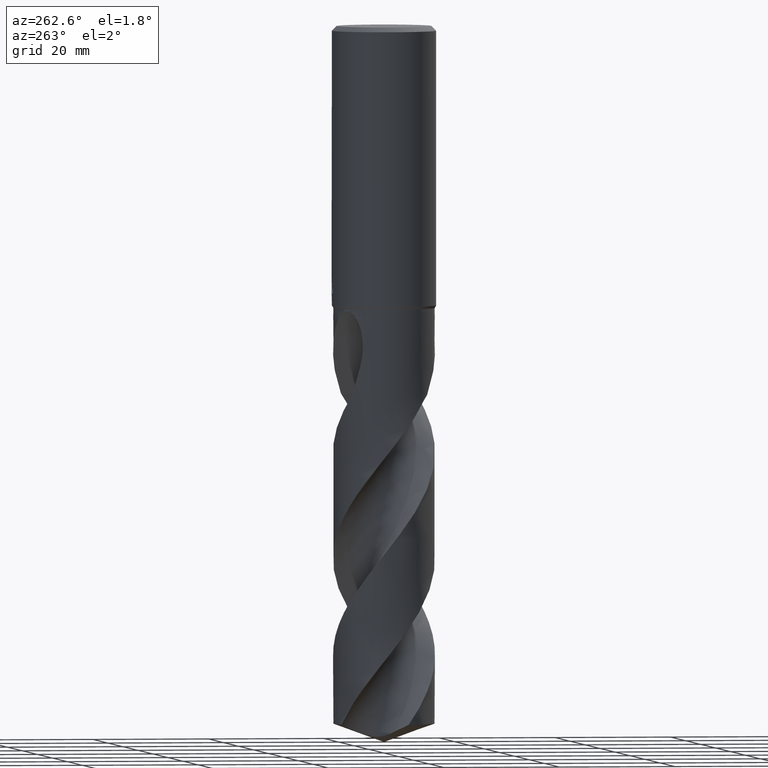
[diagram: clean part render]
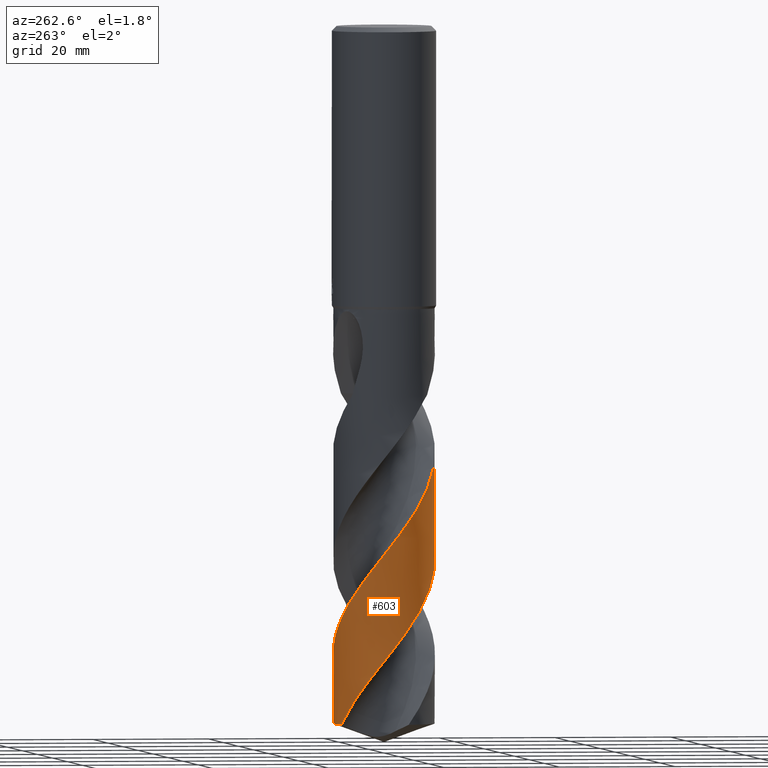
[diagram: same view with one face highlighted and labeled with its STEP entity id]
A machine part, auxiliary view. The second image highlights one B-rep face of the part: STEP entity #603.
In plain terms, the highlighted conical surface has half-angle 0 deg.
Its self-contained STEP definition (entity closure, byte-faithful):
#291=EDGE_CURVE('',#529,#585,#776,.T.);
#419=VERTEX_POINT('',#921);
#429=VERTEX_POINT('',#933);
#499=EDGE_CURVE('',#591,#429,#1007,.T.);
#529=VERTEX_POINT('',#1043);
#543=EDGE_CURVE('',#419,#429,#1058,.T.);
#581=EDGE_CURVE('',#591,#529,#1098,.T.);
#585=VERTEX_POINT('',#1102);
#591=VERTEX_POINT('',#1108);
#603=ADVANCED_FACE('',(#1120),#1121,.T.);
#713=EDGE_CURVE('',#585,#419,#1240,.T.);
#776=LINE('',#1395,#1396);
#921=CARTESIAN_POINT('',(1.10111830476442E-014,8.74998104379688,-106.580937867135));
#933=CARTESIAN_POINT('',(-1.07027513830358E-015,8.75,-119.815260450171));
#1007=CIRCLE('',#3307,8.75);
#1043=CARTESIAN_POINT('',(4.08910406473381E-015,-8.74995746372751,-90.118451024961));
#1058=LINE('',#4189,#4190);
#1098=B_SPLINE_CURVE_WITH_KNOTS('',3,(#4300,#4301,#4302,#4303,#4304,#4305,#4306,#4307,#4308,#4309,#4310,#4311,#4312,#4313,#4314,#4315,#4316,#4317,#4318,#4319,#4320,#4321,#4322,#4323,#4324,#4325,#4326,#4327,#4328,#4329,#4330,#4331,#4332,#4333,#4334,#4335,#4336,#4337,#4338,#4339,#4340,#4341,#4342,#4343,#4344,#4345,#4346,#4347,#4348,#4349,#4350,#4351,#4352,#4353,#4354,#4355,#4356,#4357,#4358,#4359,#4360,#4361,#4362,#4363,#4364,#4365,#4366,#4367,#4368,#4369,#4370,#4371,#4372,#4373),.UNSPECIFIED.,.F.,.F.,(4,2,2,2,2,2,2,2,2,2,2,2,2,2,2,2,2,2,2,2,2,2,2,2,2,2,2,2,2,2,2,2,2,2,2,2,4),(0.0,2.36497755352249,6.78499535769008,9.76431037179794,10.6457926761771,12.8806068195118,13.9879459035432,15.4655499071168,19.1794870382798,20.5851091536421,23.4414272755768,25.8957393514513,27.7076913677369,28.6975368126618,30.3742090805714,33.4579920815654,35.1436729529861,38.2149207105412,39.8935159489605,42.932040089916,44.2124810737531,47.3008017942767,50.1007945594739,52.7894991489171,53.6686242669561,57.2784470380588,58.8646897885299,62.0038438197224,64.5518003567759,66.1054916790928,68.2085336461381,69.1730580654914,70.675053555753,71.3917388857173,72.372174890273,74.4709520451919,76.1527071301385),.UNSPECIFIED.);
#1102=CARTESIAN_POINT('',(-3.17431485475902E-013,-8.7499311827888,-71.7703451904479));
#1108=CARTESIAN_POINT('',(-3.89440784613369,7.83556555252857,-119.815260450171));
#1120=FACE_OUTER_BOUND('',#4497,.T.);
#1121=CONICAL_SURFACE('',#4498,8.74995,1.43235159984931E-006);
#1240=B_SPLINE_CURVE_WITH_KNOTS('',3,(#5209,#5210,#5211,#5212,#5213,#5214,#5215,#5216,#5217,#5218,#5219,#5220,#5221,#5222,#5223,#5224,#5225,#5226,#5227,#5228,#5229,#5230,#5231,#5232,#5233,#5234,#5235,#5236,#5237,#5238,#5239,#5240,#5241,#5242,#5243,#5244,#5245,#5246,#5247,#5248,#5249,#5250,#5251,#5252,#5253,#5254,#5255,#5256,#5257,#5258,#5259,#5260,#5261,#5262,#5263,#5264,#5265,#5266,#5267,#5268,#5269,#5270,#5271,#5272,#5273,#5274,#5275,#5276,#5277,#5278,#5279,#5280,#5281,#5282,#5283,#5284,#5285,#5286,#5287,#5288,#5289,#5290,#5291,#5292,#5293,#5294,#5295,#5296,#5297,#5298,#5299,#5300,#5301,#5302,#5303,#5304),.UNSPECIFIED.,.F.,.F.,(4,2,2,2,2,2,2,2,2,2,2,2,2,2,2,2,2,2,2,2,2,2,2,2,2,2,2,2,2,2,2,2,2,2,2,2,2,2,2,2,2,2,2,2,2,2,2,4),(0.0,0.245507380170843,0.350571643075017,1.395727254963,1.75121163288603,1.97614686563744,2.18570531824396,2.90763652603391,3.24173027483911,3.70690767106164,4.35111834800054,5.37181342132324,6.99202779965413,8.75473559861788,9.82239104476386,12.4353693166588,13.5149695218915,14.5839453858922,16.7292639530105,17.8100349589752,19.9438823553706,22.0974948359425,24.2480668471858,26.3975937035348,27.477086701343,28.5406174187847,30.684555936824,31.7651695662003,33.8998065443546,36.0538108940197,38.2023473233192,40.3517941158014,42.5096472111785,44.6540260811914,45.7343488328198,47.8665947325595,50.0208399451616,52.1672222816644,54.3168824520309,55.3175252101478,56.2465060748161,59.7418490257528,61.0610371438247,63.3781294761052,64.2490928390077,65.0112059642977,65.0943980190321,70.3596381664071),.UNSPECIFIED.);
#1395=CARTESIAN_POINT('',(1.07277985785381E-015,-8.74995,-84.9076302250854));
#1396=VECTOR('',#5465,1.0);
#3307=AXIS2_PLACEMENT_3D('',#5765,#5766,#5767);
#4189=CARTESIAN_POINT('',(-1.07026901527181E-015,8.74995,-84.9076302250854));
#4190=VECTOR('',#5836,1.0);
#4300=CARTESIAN_POINT('',(-3.89440784613363,7.8355655525286,-119.815260450171));
#4301=CARTESIAN_POINT('',(-4.33170403966869,7.61822100068688,-119.196397757375));
#4302=CARTESIAN_POINT('',(-4.7501860208628,7.36458397657388,-118.580915859982));
#4303=CARTESIAN_POINT('',(-5.88435241606085,6.53997505927359,-116.807106934476));
#4304=CARTESIAN_POINT('',(-6.5345777207194,5.89038128638051,-115.651517875812));
#4305=CARTESIAN_POINT('',(-7.43519050537115,4.65398990659416,-113.717325087965));
#4306=CARTESIAN_POINT('',(-7.74385187680711,4.11979099896146,-112.944555884184));
#4307=CARTESIAN_POINT('',(-8.06768341940668,3.39232076442743,-111.934118653877));
#4308=CARTESIAN_POINT('',(-8.13632228789534,3.22421018547468,-111.702963262564));
#4309=CARTESIAN_POINT('',(-8.36039188150421,2.62260890126426,-110.887630983666));
#4310=CARTESIAN_POINT('',(-8.48700668198068,2.17857493774401,-110.305868592847));
#4311=CARTESIAN_POINT('',(-8.62321156021584,1.50160192465676,-109.433232910285));
#4312=CARTESIAN_POINT('',(-8.65950120421309,1.27573764653022,-109.144358192718));
#4313=CARTESIAN_POINT('',(-8.72345189357737,0.746063037923902,-108.468988438633));
#4314=CARTESIAN_POINT('',(-8.74410514801424,0.441945405662695,-108.081748692351));
#4315=CARTESIAN_POINT('',(-8.76093910664744,-0.626418631619816,-106.725713624325));
#4316=CARTESIAN_POINT('',(-8.67280507118834,-1.38891156502717,-105.767867429686));
#4317=CARTESIAN_POINT('',(-8.41621411120154,-2.4110527545395,-104.431658896953));
#4318=CARTESIAN_POINT('',(-8.33196653651209,-2.68778757366063,-104.063688721698));
#4319=CARTESIAN_POINT('',(-8.03509181699257,-3.51358220940433,-102.951167406881));
#4320=CARTESIAN_POINT('',(-7.78077789940143,-4.04574530022361,-102.211287593273));
#4321=CARTESIAN_POINT('',(-7.21184098628052,-4.98068301437205,-100.826255870022));
#4322=CARTESIAN_POINT('',(-6.91215422266974,-5.38886983983804,-100.183536895427));
#4323=CARTESIAN_POINT('',(-6.33251134219783,-6.04985087407868,-99.0708558207345));
#4324=CARTESIAN_POINT('',(-6.06853233175031,-6.31462558958151,-98.5997891721932));
#4325=CARTESIAN_POINT('',(-5.63525098718252,-6.69683214318761,-97.8694416428742));
#4326=CARTESIAN_POINT('',(-5.47763179181032,-6.8263469752926,-97.6115303595586));
#4327=CARTESIAN_POINT('',(-5.04162689000128,-7.15982210982681,-96.9156915770045));
#4328=CARTESIAN_POINT('',(-4.75531641033648,-7.35311032787125,-96.4765423189702));
#4329=CARTESIAN_POINT('',(-3.91129911463795,-7.852856664895,-95.2340741730841));
#4330=CARTESIAN_POINT('',(-3.33114644649924,-8.11594370110411,-94.4362176450656));
#4331=CARTESIAN_POINT('',(-2.39799312715891,-8.4221103606041,-93.1913246697513));
#4332=CARTESIAN_POINT('',(-2.0620872787724,-8.51059888773025,-92.7497176607122));
#4333=CARTESIAN_POINT('',(-1.1009415537567,-8.70346524521734,-91.5079122755914));
#4334=CARTESIAN_POINT('',(-0.468951722298268,-8.76024980376346,-90.7130921636457));
#4335=CARTESIAN_POINT('',(0.509151488197143,-8.74196934513019,-89.4731095674167));
#4336=CARTESIAN_POINT('',(0.854020138251592,-8.71504730195512,-89.0332985121411));
#4337=CARTESIAN_POINT('',(1.81701906032948,-8.58208970925588,-87.8017037524148));
#4338=CARTESIAN_POINT('',(2.42618065687022,-8.43013488647703,-87.0151190712347));
#4339=CARTESIAN_POINT('',(3.26150014234107,-8.12365994331207,-85.887618114689));
#4340=CARTESIAN_POINT('',(3.50459052698164,-8.02177373983561,-85.5523735276839));
#4341=CARTESIAN_POINT('',(4.31685783493317,-7.63740051589409,-84.412121475868));
#4342=CARTESIAN_POINT('',(4.8601017805071,-7.30381495248403,-83.613265857838));
#4343=CARTESIAN_POINT('',(5.81852662829019,-6.56040937231306,-82.0784787900609));
#4344=CARTESIAN_POINT('',(6.23808297158666,-6.16285276675942,-81.3458675032062));
#4345=CARTESIAN_POINT('',(6.97830043032391,-5.30770985482028,-79.9154141529186));
#4346=CARTESIAN_POINT('',(7.29991363141526,-4.85575315210688,-79.2190201124674));
#4347=CARTESIAN_POINT('',(7.66686867967393,-4.22057515986523,-78.2880307082281));
#4348=CARTESIAN_POINT('',(7.75230953580969,-4.06150114262535,-78.0582030374557));
#4349=CARTESIAN_POINT('',(8.16346881981377,-3.23566843670345,-76.8869579060382));
#4350=CARTESIAN_POINT('',(8.40845817010749,-2.53197251908369,-75.9566233491742));
#4351=CARTESIAN_POINT('',(8.62902628291628,-1.48586428990215,-74.6028166808231));
#4352=CARTESIAN_POINT('',(8.67838349568826,-1.16331925375371,-74.1882817033483));
#4353=CARTESIAN_POINT('',(8.77148714844101,-0.196553274208863,-72.9569298117788));
#4354=CARTESIAN_POINT('',(8.762113882887,0.450496513605582,-72.1450210490539));
#4355=CARTESIAN_POINT('',(8.61641201243654,1.6102675818709,-70.6645662181363));
#4356=CARTESIAN_POINT('',(8.50467691586296,2.12266839201119,-69.9991028481723));
#4357=CARTESIAN_POINT('',(8.2521649241751,2.92658161938397,-68.9310304704817));
#4358=CARTESIAN_POINT('',(8.13887461435934,3.22894099381837,-68.5217159610143));
#4359=CARTESIAN_POINT('',(7.82980927171954,3.93061288663107,-67.5680920317215));
#4360=CARTESIAN_POINT('',(7.62674145427754,4.3088473715599,-67.0482106853977));
#4361=CARTESIAN_POINT('',(7.30440005535323,4.82111117801139,-66.2547665824119));
#4362=CARTESIAN_POINT('',(7.20651393082377,4.96506445149397,-66.0135730084809));
#4363=CARTESIAN_POINT('',(6.97328444882663,5.2909348195908,-65.4608900557279));
#4364=CARTESIAN_POINT('',(6.84864238522588,5.44751826422537,-65.1841706884439));
#4365=CARTESIAN_POINT('',(6.72210422235309,5.60165946163059,-64.9199819252986));
#4366=CARTESIAN_POINT('',(6.67986424496679,5.65199373022262,-64.8357337192534));
#4367=CARTESIAN_POINT('',(6.57635887561985,5.77243778054109,-64.6385500446745));
#4368=CARTESIAN_POINT('',(6.5139575841834,5.84283976337278,-64.5267444897327));
#4369=CARTESIAN_POINT('',(6.309185841717,6.06612911051724,-64.1814930286573));
#4370=CARTESIAN_POINT('',(6.15781270828028,6.22039572181977,-63.95649970711));
#4371=CARTESIAN_POINT('',(5.86178514634131,6.49871022093317,-63.565589308099));
#4372=CARTESIAN_POINT('',(5.72258370299005,6.62189538779897,-63.3978878706305));
#4373=CARTESIAN_POINT('',(5.57559287318262,6.74342982981346,-63.235));
#4497=EDGE_LOOP('',(#5876,#5877,#5878,#5879,#5880));
#4498=AXIS2_PLACEMENT_3D('',#5881,#5882,#5883);
#5209=CARTESIAN_POINT('',(6.08186943309706,-6.29062365396806,-63.235));
#5210=CARTESIAN_POINT('',(6.04695114056061,-6.32438331488388,-63.3008642180626));
#5211=CARTESIAN_POINT('',(6.01169387551492,-6.35790875757231,-63.3667040252356));
#5212=CARTESIAN_POINT('',(5.96078889463706,-6.40550695858466,-63.4606122428381));
#5213=CARTESIAN_POINT('',(5.94546613209726,-6.41973201142739,-63.4887336033103));
#5214=CARTESIAN_POINT('',(5.77689377400906,-6.57510366858302,-63.7964182215658));
#5215=CARTESIAN_POINT('',(5.6198693855694,-6.71005726229731,-64.0672614045973));
#5216=CARTESIAN_POINT('',(5.39333102092037,-6.89046403243696,-64.434665739004));
#5217=CARTESIAN_POINT('',(5.33508239081258,-6.93566993394222,-64.5273143581722));
#5218=CARTESIAN_POINT('',(5.23841689336202,-7.00873108713868,-64.6785128773168));
#5219=CARTESIAN_POINT('',(5.2006622050373,-7.03679304229602,-64.7369516092899));
#5220=CARTESIAN_POINT('',(5.12710835949873,-7.09054389136373,-64.849786905083));
#5221=CARTESIAN_POINT('',(5.09140179359838,-7.11622730878856,-64.9041103574334));
#5222=CARTESIAN_POINT('',(4.93161537760109,-7.22933748268537,-65.1455739996998));
#5223=CARTESIAN_POINT('',(4.80588047595231,-7.31358327595121,-65.3319736659403));
#5224=CARTESIAN_POINT('',(4.61491717895543,-7.43429816937099,-65.6131355273926));
#5225=CARTESIAN_POINT('',(4.55417462096435,-7.47165978818011,-65.7021895683608));
#5226=CARTESIAN_POINT('',(4.40810659813298,-7.55907139299482,-65.9156068519517));
#5227=CARTESIAN_POINT('',(4.3228485621441,-7.60814257823308,-66.0396410482821));
#5228=CARTESIAN_POINT('',(4.11732401394325,-7.72187852507259,-66.337342261508));
#5229=CARTESIAN_POINT('',(3.99662547767314,-7.78502685785634,-66.5109601417654));
#5230=CARTESIAN_POINT('',(3.6814987335427,-7.94066559480272,-66.9590563801048));
#5231=CARTESIAN_POINT('',(3.48454366230284,-8.02906177012657,-67.2338248885201));
#5232=CARTESIAN_POINT('',(2.96631652560157,-8.23892139081913,-67.9433539039622));
#5233=CARTESIAN_POINT('',(2.6413502176823,-8.34879771535567,-68.3745974998749));
#5234=CARTESIAN_POINT('',(1.94973057671976,-8.53811370153049,-69.2813541843633));
#5235=CARTESIAN_POINT('',(1.58343596884471,-8.61356586428193,-69.7537106388538));
#5236=CARTESIAN_POINT('',(0.989423283880422,-8.69675215242062,-70.5136045397731));
#5237=CARTESIAN_POINT('',(0.764296597746477,-8.71941761625547,-70.8003492720272));
#5238=CARTESIAN_POINT('',(-0.0136838373550614,-8.76740065174396,-71.7888179791641));
#5239=CARTESIAN_POINT('',(-0.568323297196325,-8.74901878257479,-72.487978616382));
#5240=CARTESIAN_POINT('',(-1.34491889534234,-8.64898493196426,-73.4787451903307));
#5241=CARTESIAN_POINT('',(-1.57070262765392,-8.61084289211526,-73.768305250687));
#5242=CARTESIAN_POINT('',(-2.01648422559392,-8.51742344146447,-74.3449062825655));
#5243=CARTESIAN_POINT('',(-2.2363028236008,-8.46236366048873,-74.6317120991434));
#5244=CARTESIAN_POINT('',(-2.88990634311814,-8.27141903834646,-75.4946949736193));
#5245=CARTESIAN_POINT('',(-3.31567926066237,-8.11014470092906,-76.0701879325569));
#5246=CARTESIAN_POINT('',(-3.93434652129481,-7.81887591437314,-76.9360885710545));
#5247=CARTESIAN_POINT('',(-4.13773739151371,-7.71317603060438,-77.2259807977665));
#5248=CARTESIAN_POINT('',(-4.72978259212243,-7.37532051002985,-78.0885676305373));
#5249=CARTESIAN_POINT('',(-5.10462886665366,-7.12100011982243,-78.6602519585989));
#5250=CARTESIAN_POINT('',(-5.81465575386511,-6.554348952274,-79.8113522304908));
#5251=CARTESIAN_POINT('',(-6.14861488298059,-6.24215830582371,-80.3887157387166));
#5252=CARTESIAN_POINT('',(-6.76450179401147,-5.56874864225426,-81.5438396426138));
#5253=CARTESIAN_POINT('',(-7.0453524686113,-5.20885909755066,-82.1196848054443));
#5254=CARTESIAN_POINT('',(-7.54819184916735,-4.44902590141817,-83.2742335524868));
#5255=CARTESIAN_POINT('',(-7.76958568175996,-4.05004021644,-83.8507073442956));
#5256=CARTESIAN_POINT('',(-8.05402921679033,-3.42733333906293,-84.7173950019565));
#5257=CARTESIAN_POINT('',(-8.14092767638335,-3.21548256081841,-85.0069488946261));
#5258=CARTESIAN_POINT('',(-8.29676500474799,-2.78858352603368,-85.5820635022457));
#5259=CARTESIAN_POINT('',(-8.36585655192069,-2.57388802440909,-85.8673170771149));
#5260=CARTESIAN_POINT('',(-8.54895906042397,-1.91922713484442,-86.7284907017642));
#5261=CARTESIAN_POINT('',(-8.63709799950328,-1.47268976602944,-87.3037081481228));
#5262=CARTESIAN_POINT('',(-8.7168894506855,-0.793743905881658,-88.1693570114054));
#5263=CARTESIAN_POINT('',(-8.73468768477551,-0.565213579147177,-88.4592721956927));
#5264=CARTESIAN_POINT('',(-8.76088967376838,0.116169448625162,-89.3222298570315));
#5265=CARTESIAN_POINT('',(-8.74314436067854,0.569036229118955,-89.8943389076591));
#5266=CARTESIAN_POINT('',(-8.63737829360467,1.47167610740551,-91.0459856937966));
#5267=CARTESIAN_POINT('',(-8.54884317756405,1.92034625765798,-91.6235264694683));
#5268=CARTESIAN_POINT('',(-8.30273018106785,2.7989447857647,-92.778397077264));
#5269=CARTESIAN_POINT('',(-8.145793823656,3.22726046112694,-93.3538207821398));
#5270=CARTESIAN_POINT('',(-7.76673948850341,4.05550607010148,-94.5080111228307));
#5271=CARTESIAN_POINT('',(-7.5450571292593,4.4544072733002,-95.0845539344211));
#5272=CARTESIAN_POINT('',(-7.04042121705228,5.21572214389278,-96.2408598726556));
#5273=CARTESIAN_POINT('',(-6.75814945954487,5.5766073240678,-96.8185444277856));
#5274=CARTESIAN_POINT('',(-6.14181476812009,6.2487334003351,-97.9738603709943));
#5275=CARTESIAN_POINT('',(-5.80891292716821,6.55936342626212,-98.5492655578257));
#5276=CARTESIAN_POINT('',(-5.27418198869191,6.98551844175301,-99.4150857084048));
#5277=CARTESIAN_POINT('',(-5.08947219717215,7.12122033523081,-99.7049656105187));
#5278=CARTESIAN_POINT('',(-4.52489339677787,7.50279371699478,-100.567341546109));
#5279=CARTESIAN_POINT('',(-4.1312445850339,7.72651839020674,-101.138967422886));
#5280=CARTESIAN_POINT('',(-3.30903652010841,8.11300256098309,-102.290209900186));
#5281=CARTESIAN_POINT('',(-2.88110159214424,8.27466663941564,-102.867871029936));
#5282=CARTESIAN_POINT('',(-2.00517740987729,8.52928048479052,-104.022387299036));
#5283=CARTESIAN_POINT('',(-1.55893005006292,8.62199673096349,-104.597361207727));
#5284=CARTESIAN_POINT('',(-0.655677359061875,8.73726726659154,-105.751221391228));
#5285=CARTESIAN_POINT('',(-0.199751187008872,8.75957279451484,-106.327898851739));
#5286=CARTESIAN_POINT('',(0.468094281644172,8.74002910025182,-107.173738455606));
#5287=CARTESIAN_POINT('',(0.679949708368616,8.7261053460766,-107.442254432378));
#5288=CARTESIAN_POINT('',(1.08714923327317,8.68441956876159,-107.960279189675));
#5289=CARTESIAN_POINT('',(1.28239539231208,8.65774041334346,-108.209536036407));
#5290=CARTESIAN_POINT('',(2.20703239522124,8.49944130204558,-109.39775790451));
#5291=CARTESIAN_POINT('',(2.91897162524612,8.282019109531,-110.333520334465));
#5292=CARTESIAN_POINT('',(3.8502618126734,7.86232263911101,-111.626150568195));
#5293=CARTESIAN_POINT('',(4.09966291381705,7.7351986294086,-111.9799701061));
#5294=CARTESIAN_POINT('',(4.76898962943171,7.3525788899059,-112.956813572083));
#5295=CARTESIAN_POINT('',(5.17429776646863,7.07322545324003,-113.578780366444));
#5296=CARTESIAN_POINT('',(5.69680384024765,6.6440136464892,-114.435086372614));
#5297=CARTESIAN_POINT('',(5.83582492195996,6.52224407876544,-114.668923785118));
#5298=CARTESIAN_POINT('',(6.08910960031771,6.28579933212143,-115.107471223783));
#5299=CARTESIAN_POINT('',(6.20423235659359,6.1721987734448,-115.312060175938));
#5300=CARTESIAN_POINT('',(6.32835999379529,6.04272820807818,-115.539050963789));
#5301=CARTESIAN_POINT('',(6.3405371892199,6.02994967658704,-115.56139023297));
#5302=CARTESIAN_POINT('',(7.12092583826255,5.2060461725843,-116.997674507354));
#5303=CARTESIAN_POINT('',(7.72679317318363,4.25525561885099,-118.401274613178));
#5304=CARTESIAN_POINT('',(8.13744065526407,3.21629594130507,-119.815260450171));
#5465=DIRECTION('',(-1.75406687008252E-022,1.43235159984882E-006,0.999999999998974));
#5765=CARTESIAN_POINT('',(0.0,0.0,-119.815260450171));
#5766=DIRECTION('',(0.0,0.0,-1.0));
#5767=DIRECTION('',(0.0,1.0,0.0));
#5836=DIRECTION('',(-1.75406687008252E-022,1.43235159984882E-006,-0.999999999998974));
#5876=ORIENTED_EDGE('',*,*,#543,.T.);
#5877=ORIENTED_EDGE('',*,*,#499,.F.);
#5878=ORIENTED_EDGE('',*,*,#581,.T.);
#5879=ORIENTED_EDGE('',*,*,#291,.T.);
#5880=ORIENTED_EDGE('',*,*,#713,.T.);
#5881=CARTESIAN_POINT('',(0.0,0.0,-84.9076302250854));
#5882=DIRECTION('',(0.0,-0.0,-1.0));
#5883=DIRECTION('',(0.0,1.0,0.0));